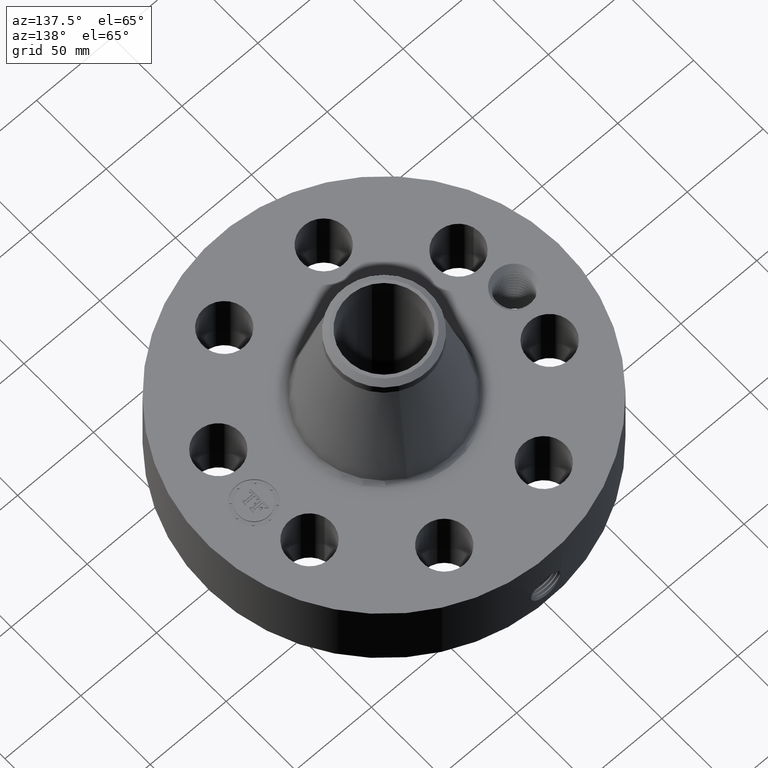
[diagram: clean part render]
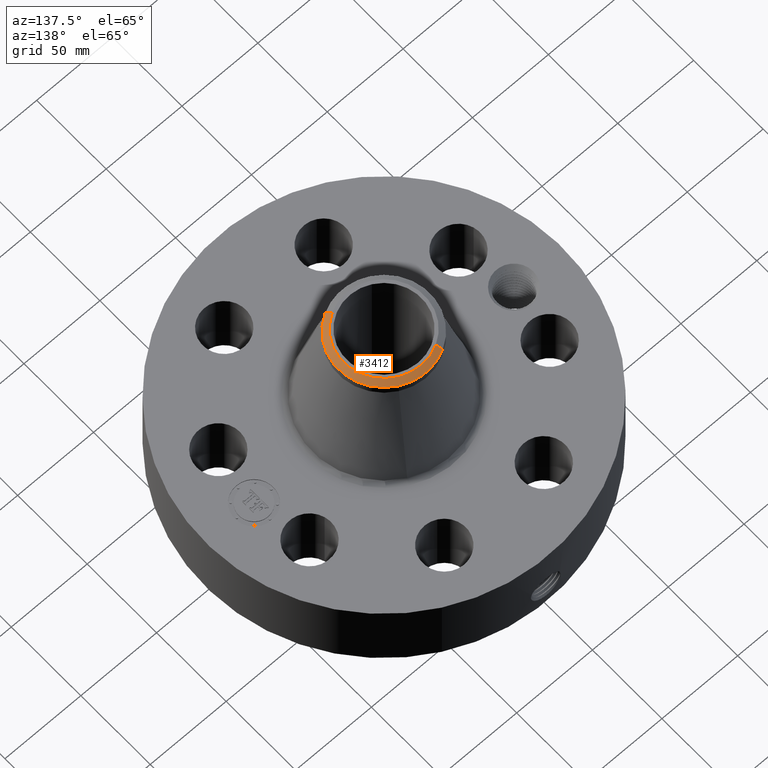
[diagram: same view with one face highlighted and labeled with its STEP entity id]
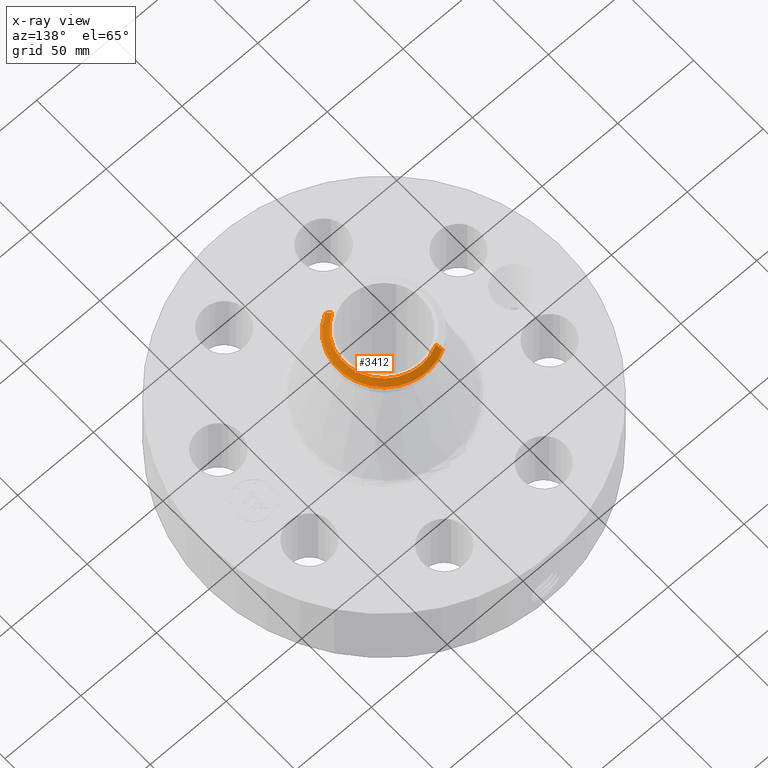
[diagram: x-ray of the same camera — body ghosted, the highlighted face saturated]
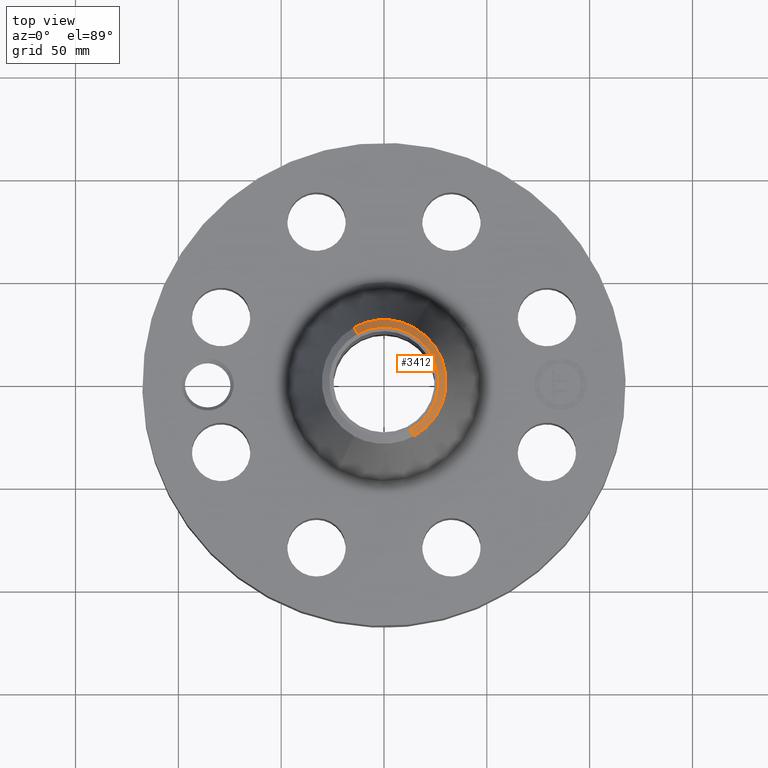
[diagram: same view with one face highlighted and labeled with its STEP entity id]
A machine part, auxiliary view. The second image highlights one B-rep face of the part: STEP entity #3412.
The next image is the same camera in x-ray: the body ghosted, the highlighted face saturated — about 0% of this face is hidden behind the body in this view.
A second angle (top view) of the same face is appended — the face is thin or edge-on in the first view.
In plain terms, the highlighted conical surface has half-angle 52.5 deg.
Its self-contained STEP definition (entity closure, byte-faithful):
#2479=AXIS2_PLACEMENT_3D('Circle Axis2P3D',#2477,#2478,$) ;
#3357=AXIS2_PLACEMENT_3D('Cone Axis2P3D',#3354,#3355,#3356) ;
#3395=AXIS2_PLACEMENT_3D('Circle Axis2P3D',#3393,#3394,$) ;
#3402=AXIS2_PLACEMENT_3D('Circle Axis2P3D',#3400,#3401,$) ;
#2477=CARTESIAN_POINT('Axis2P3D Location',(0.,0.,5.25000000002)) ;
#2481=CARTESIAN_POINT('Vertex',(0.502553102088,-0.919917282881,5.25000000002)) ;
#2483=CARTESIAN_POINT('Vertex',(-0.502553102088,0.919917282881,5.25000000002)) ;
#3354=CARTESIAN_POINT('Axis2P3D Location',(0.,0.,5.25000000002)) ;
#3359=CARTESIAN_POINT('Line Origine',(0.536534746515,-0.982120265768,5.19561192353)) ;
#3363=CARTESIAN_POINT('Vertex',(0.570516390941,-1.04432324865,5.14122384704)) ;
#3366=CARTESIAN_POINT('Line Origine',(-0.536534746515,0.982120265768,5.19561192353)) ;
#3370=CARTESIAN_POINT('Vertex',(-0.570516390941,1.04432324865,5.14122384704)) ;
#3393=CARTESIAN_POINT('Axis2P3D Location',(0.,0.,5.14122384704)) ;
#3397=CARTESIAN_POINT('Vertex',(0.570516390941,1.04432324865,5.14122384704)) ;
#3400=CARTESIAN_POINT('Axis2P3D Location',(0.,0.,5.14122384704)) ;
#2478=DIRECTION('Axis2P3D Direction',(0.,0.,-0.0393700787402)) ;
#3355=DIRECTION('Axis2P3D Direction',(-0.,-0.,-0.0393700787402)) ;
#3356=DIRECTION('Axis2P3D XDirection',(-0.0188750212049,0.0345504945626,0.)) ;
#3360=DIRECTION('Vector Direction',(0.014974561121,-0.02741075027,-0.023966985394)) ;
#3367=DIRECTION('Vector Direction',(-0.014974561121,0.02741075027,-0.023966985394)) ;
#3394=DIRECTION('Axis2P3D Direction',(0.,0.,-0.0393700787402)) ;
#3401=DIRECTION('Axis2P3D Direction',(0.,0.,-0.0393700787402)) ;
#3361=VECTOR('Line Direction',#3360,0.0393700787402) ;
#3368=VECTOR('Line Direction',#3367,0.0393700787402) ;
#3406=ORIENTED_EDGE('',*,*,#3372,.F.) ;
#3407=ORIENTED_EDGE('',*,*,#2485,.F.) ;
#3408=ORIENTED_EDGE('',*,*,#3365,.T.) ;
#3409=ORIENTED_EDGE('',*,*,#3399,.T.) ;
#3410=ORIENTED_EDGE('',*,*,#3404,.F.) ;
#3412=ADVANCED_FACE('PartBody',(#3411),#3358,.T.) ;
#2480=CIRCLE('generated circle',#2479,1.04824015748) ;
#3396=CIRCLE('generated circle',#3395,1.19) ;
#3403=CIRCLE('generated circle',#3402,1.19) ;
#3358=CONICAL_SURFACE('Cone',#3357,1.04824015748,0.916297857297) ;
#2485=EDGE_CURVE('',#2482,#2484,#2480,.F.) ;
#3365=EDGE_CURVE('',#2482,#3364,#3362,.T.) ;
#3372=EDGE_CURVE('',#2484,#3371,#3369,.T.) ;
#3399=EDGE_CURVE('',#3364,#3398,#3396,.F.) ;
#3404=EDGE_CURVE('',#3371,#3398,#3403,.T.) ;
#3405=EDGE_LOOP('',(#3406,#3407,#3408,#3409,#3410)) ;
#3411=FACE_OUTER_BOUND('',#3405,.T.) ;
#3362=LINE('Line',#3359,#3361) ;
#3369=LINE('Line',#3366,#3368) ;
#2482=VERTEX_POINT('',#2481) ;
#2484=VERTEX_POINT('',#2483) ;
#3364=VERTEX_POINT('',#3363) ;
#3371=VERTEX_POINT('',#3370) ;
#3398=VERTEX_POINT('',#3397) ;